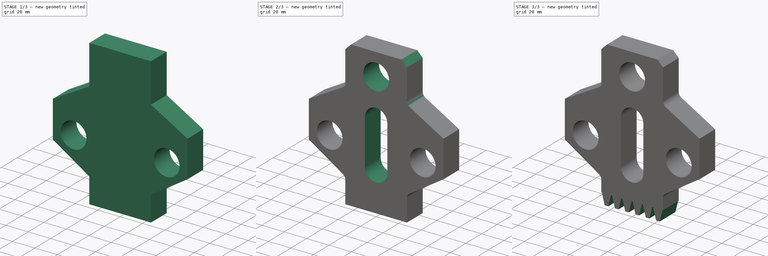
[diagram: build sequence overview — one tinted view per stage of 3, left to right]
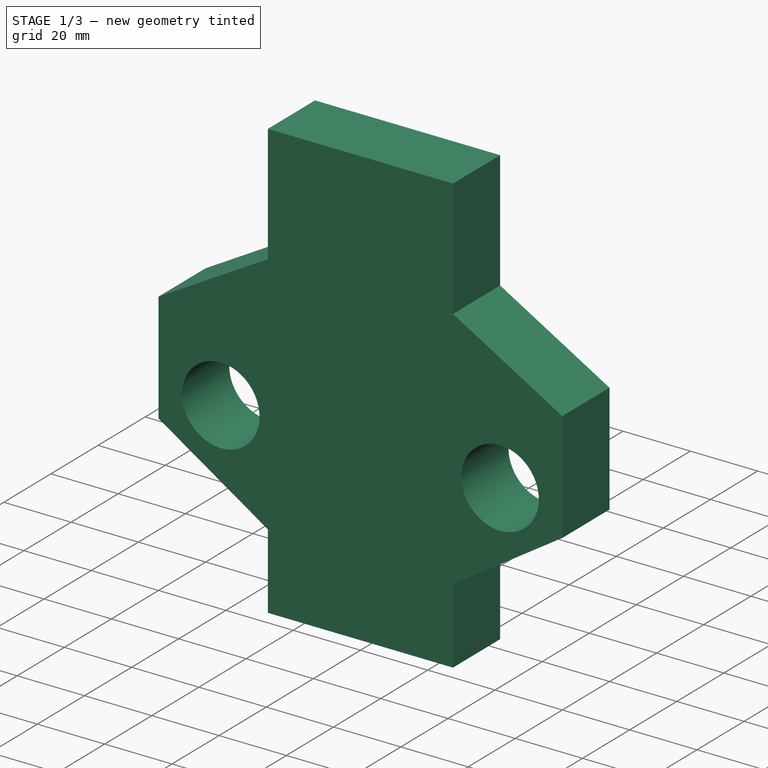
[diagram: stage 1 of 3 — iso view after this stage's code; geometry added in this stage tinted green]
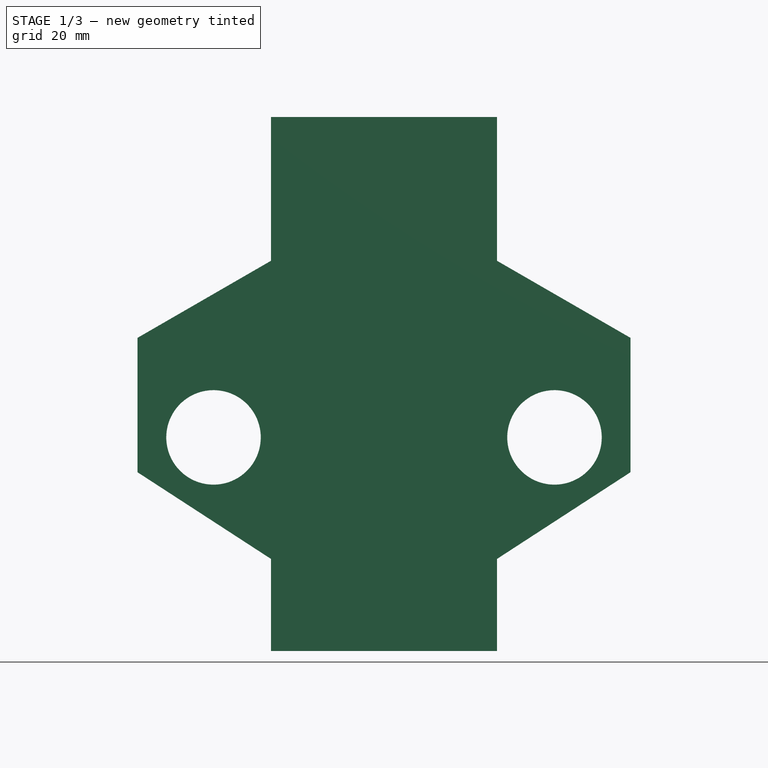
[diagram: stage 1 of 3 — front view after this stage's code; geometry added in this stage tinted green]
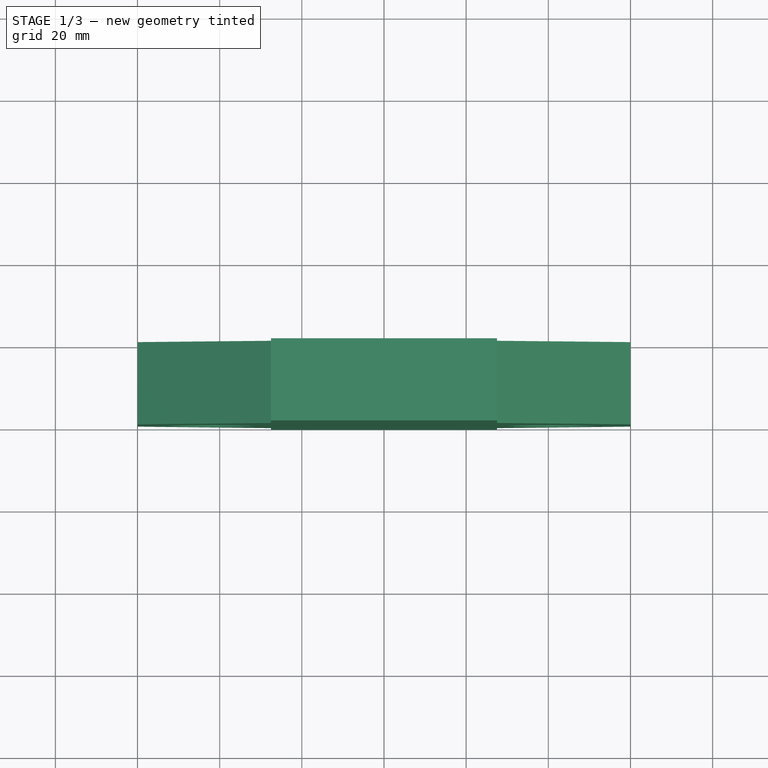
[diagram: stage 1 of 3 — top view after this stage's code; geometry added in this stage tinted green]
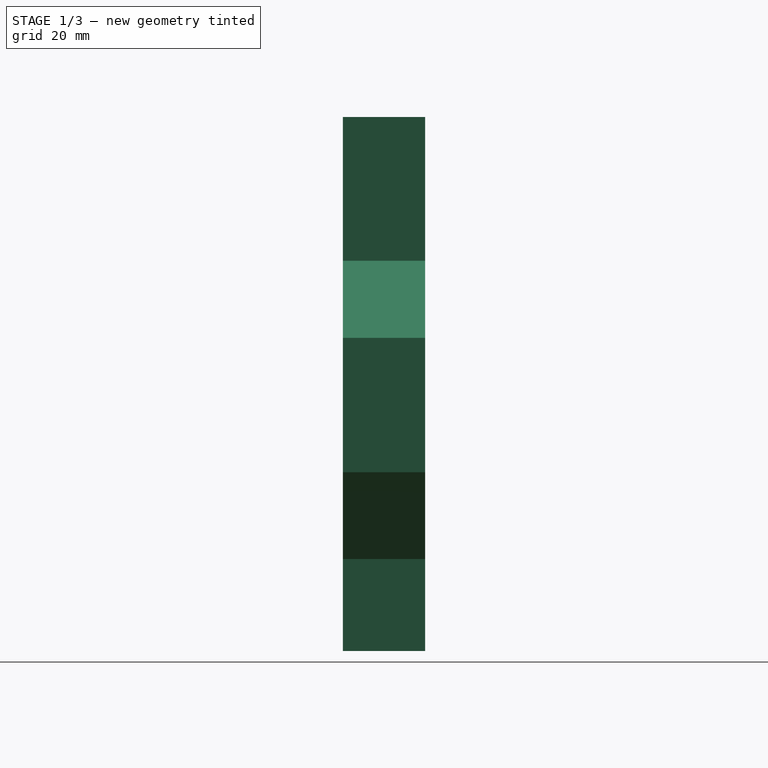
[diagram: stage 1 of 3 — right view after this stage's code; geometry added in this stage tinted green]
FCSTD DOCUMENT  (FreeCAD 0.17R9787 (Git))
Label: 2ndExample
License: All rights reserved
LicenseURL: http://en.wikipedia.org/wiki/All_rights_reserved
objects: Sketcher::SketchObject×4, PartDesign::Pocket×3, PartDesign::Pad×1, PartDesign::Plane×1, PartDesign::Fillet×1, PartDesign::Chamfer×1, PartDesign::LinearPattern×1, PartDesign::Body×1, App::Part×1
note: 17 computed .brp shape members not serialized (recipe doc carries the construction recipe); baked Part::Feature solids carry a one-line shape summary decoded from their .brp

FEATURE [Sketcher::SketchObject] Sketch
  MapMode = 5
  Placement = pos=(0,0,0) rot=(1,0,0;1.5708rad)
  Support = -> [XZ_Plane001]
  sketch-geometry (14):
    g0: LineSegment StartX=-27.5 StartY=70.1217 StartZ=0 EndX=27.5 EndY=70.1217 EndZ=0
    g1: LineSegment StartX=27.5 StartY=70.1217 StartZ=0 EndX=27.5 EndY=35.1217 EndZ=0
    g2: LineSegment StartX=27.5 StartY=35.1217 StartZ=0 EndX=60 EndY=16.3578 EndZ=0
    g3: LineSegment StartX=60 StartY=16.3578 StartZ=0 EndX=60 EndY=-16.3578 EndZ=0
    g4: LineSegment StartX=60 StartY=-16.3578 StartZ=0 EndX=27.5 EndY=-37.4635 EndZ=0
    g5: LineSegment StartX=27.5 StartY=-37.4635 StartZ=0 EndX=27.5 EndY=-59.8783 EndZ=0
    g6: LineSegment StartX=27.5 StartY=-59.8783 StartZ=0 EndX=-27.5 EndY=-59.8783 EndZ=0
    g7: LineSegment StartX=-27.5 StartY=-59.8783 StartZ=0 EndX=-27.5 EndY=-37.4635 EndZ=0
    g8: LineSegment StartX=-27.5 StartY=-37.4635 StartZ=0 EndX=-60 EndY=-16.3578 EndZ=0
    g9: LineSegment StartX=-60 StartY=-16.3578 StartZ=0 EndX=-60 EndY=16.3578 EndZ=0
    g10: LineSegment StartX=-60 StartY=16.3578 StartZ=0 EndX=-27.5 EndY=35.1217 EndZ=0
    g11: LineSegment StartX=-27.5 StartY=35.1217 StartZ=0 EndX=-27.5 EndY=70.1217 EndZ=0
    g12: Circle [constr] CenterX=41.5 CenterY=-7.87832 CenterZ=0 NormalX=0 NormalY=0 NormalZ=1 Radius=11.5
    g13: Circle [constr] CenterX=32.5 CenterY=-40.1783 CenterZ=0 NormalX=0 NormalY=0 NormalZ=1 Radius=5
  constraints (39):
    c: Horizontal(g0)
    c: Coincident(g0,g1)
    c: Coincident(g1,g2)
    c: Coincident(g2,g3)
    c: Vertical(g3)
    c: Coincident(g3,g4)
    c: Coincident(g4,g5)
    c: Vertical(g5)
    c: Coincident(g5,g6)
    c: Horizontal(g6)
    c: Coincident(g6,g7)
    c: Coincident(g7,g8)
    c: Coincident(g8,g9)
    c: Coincident(g9,g10)
    c: Coincident(g10,g11)
    c: Coincident(g11,g0)
    c: Symmetric(g0,g0,g-2)
    c: Symmetric(g1,g10,g-2)
    c: Symmetric(g2,g9,g-2)
    c: Symmetric(g3,g8,g-2)
    c: Symmetric(g4,g7,g-2)
    c: Symmetric(g5,g6,g-2)
    c: Distance(g0,g6) = 130
    c: Distance(g8,g3) = 120
    c: Distance(g0) = 55
    c: Angle(g10) = 0.523599
    c: Equal(g0,g6)
    c: Equal(g9,g3)
    c: Symmetric(g3,g2,g-1)
    c: Angle(g2,g4) = 1.09956
    c: Vertical(g1)
    c: Distance(g1) = 35
    c: Distance(g12,g6) = 52
    c: Distance(g12,g3) = 18.5
    c: Radius(g13) = 5
    c: Tangent(g13,g5)
    c: Tangent(g13,g4)
    c: Distance(g13,g6) = 19.7
    c: Radius(g12) = 11.5
FEATURE [PartDesign::Pad] Pad
  Length = 20
  Length2 = 100
  Placement = pos=(0,0,0) rot=(1,0,0;1.5708rad)
  Profile = -> Sketch
  Type = 0
FEATURE [PartDesign::Plane] DatumPlane
  MapMode = 5
  Placement = pos=(0,-20,0) rot=(1,0,0;1.5708rad)
  Support = -> [Pad]
FEATURE [Sketcher::SketchObject] Sketch001
  ExternalGeometry = -> [Pad]
  MapMode = 5
  Placement = pos=(0,-20,0) rot=(1,0,0;1.5708rad)
  Support = -> [DatumPlane]
  sketch-geometry (2):
    g0: Circle CenterX=41.5 CenterY=-7.87832 CenterZ=0 NormalX=0 NormalY=0 NormalZ=1 Radius=11.5
    g1: Circle CenterX=-41.5 CenterY=-7.87832 CenterZ=0 NormalX=0 NormalY=0 NormalZ=1 Radius=11.5
  constraints (5):
    c: Distance(g0,g-3) = 18.5
    c: Radius(g0) = 11.5
    c: Distance(g0,g-4) = 52
    c: Symmetric(g1,g0,g-2)
    c: Equal(g1,g0)
FEATURE [PartDesign::Pocket] Pocket
  BaseFeature = -> Pad
  Length = 5
  Placement = pos=(0,0,0) rot=(1,0,0;1.5708rad)
  Profile = -> Sketch001
  Type = 1
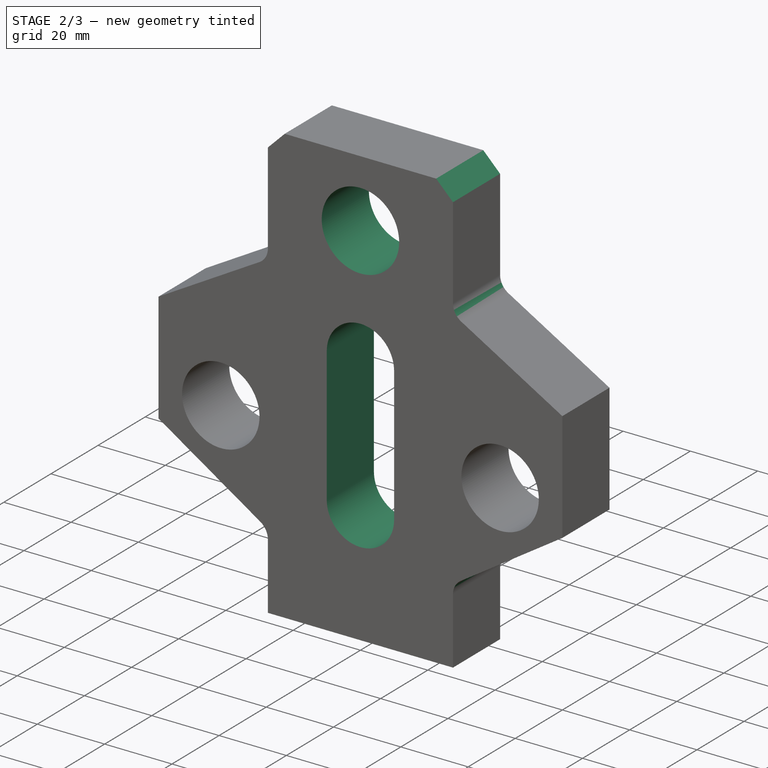
[diagram: stage 2 of 3 — iso view after this stage's code; geometry added in this stage tinted green]
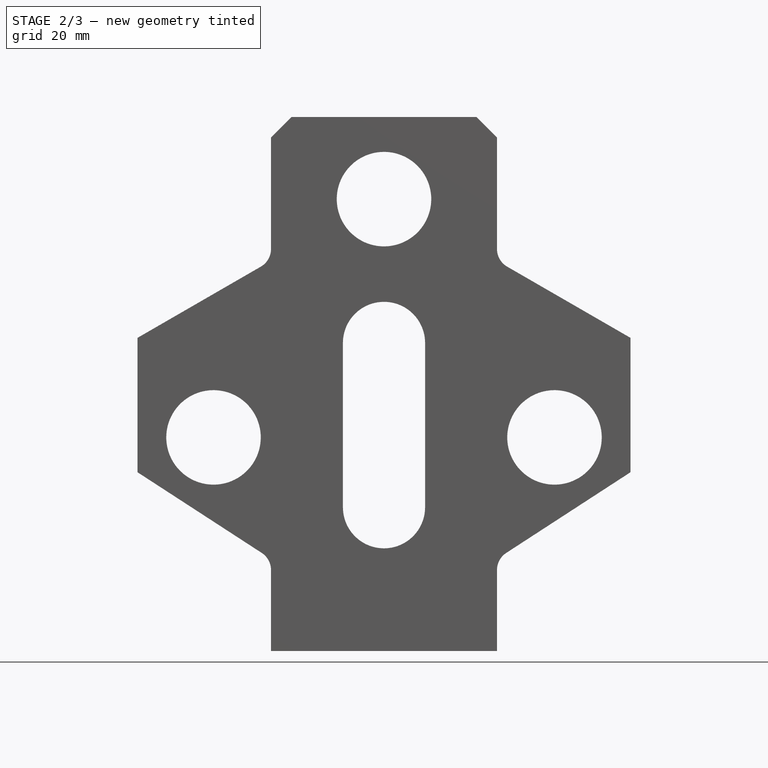
[diagram: stage 2 of 3 — front view after this stage's code; geometry added in this stage tinted green]
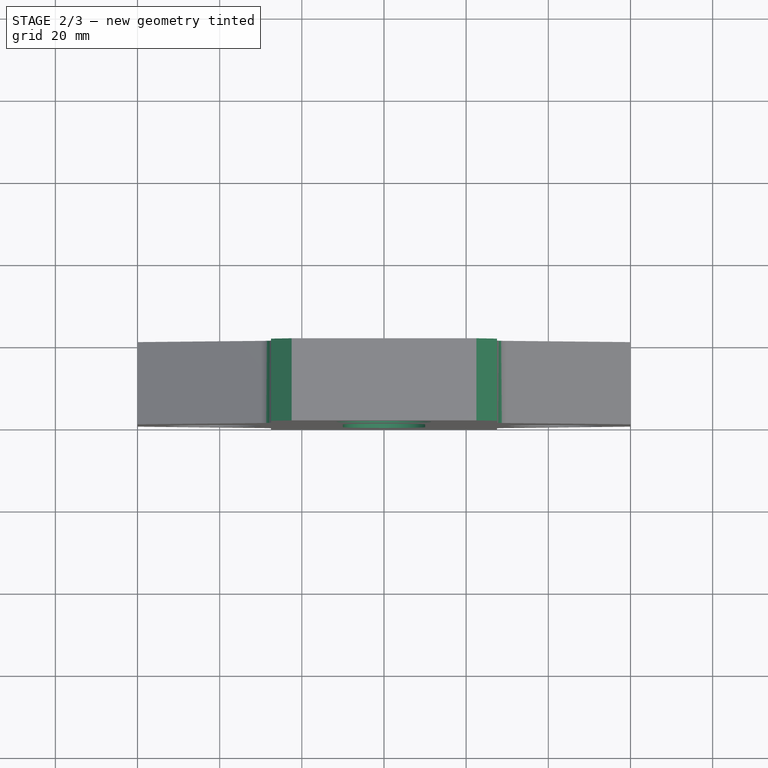
[diagram: stage 2 of 3 — top view after this stage's code; geometry added in this stage tinted green]
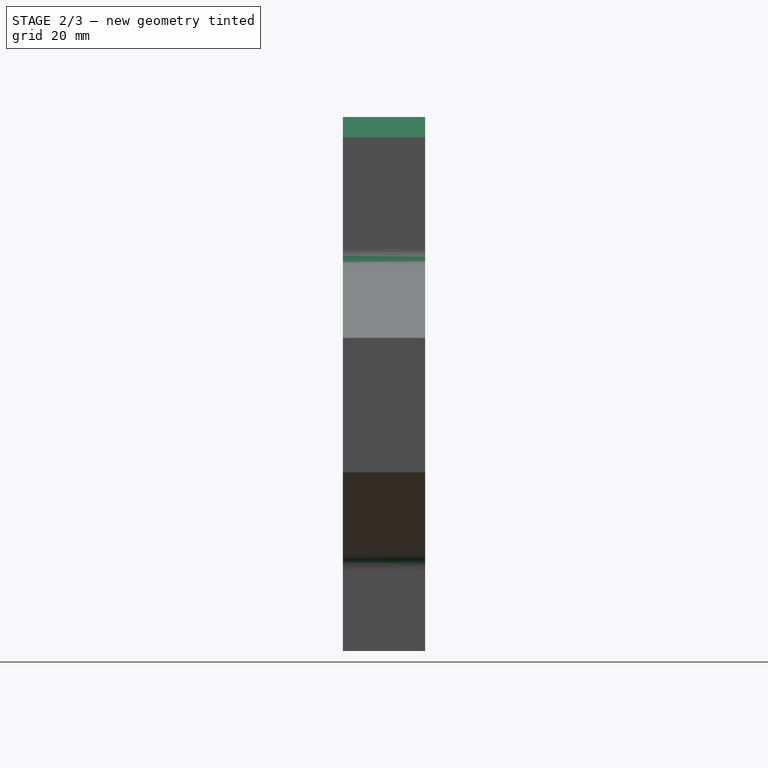
[diagram: stage 2 of 3 — right view after this stage's code; geometry added in this stage tinted green]
FEATURE [Sketcher::SketchObject] Sketch002
  ExternalGeometry = -> [Pocket]
  MapMode = 5
  Placement = pos=(0,-20,0) rot=(1,0,0;1.5708rad)
  Support = -> [DatumPlane]
  sketch-geometry (5):
    g0: Circle CenterX=0 CenterY=50.1217 CenterZ=0 NormalX=0 NormalY=0 NormalZ=1 Radius=11.5
    g1: ArcOfCircle CenterX=0 CenterY=15.1217 CenterZ=0 NormalX=0 NormalY=0 NormalZ=1 Radius=10 StartAngle=0 EndAngle=3.14159
    g2: ArcOfCircle CenterX=0 CenterY=-24.8783 CenterZ=0 NormalX=0 NormalY=0 NormalZ=1 Radius=10 StartAngle=3.14159 EndAngle=6.28319
    g3: LineSegment StartX=-10 StartY=15.1217 StartZ=0 EndX=-10 EndY=-24.8783 EndZ=0
    g4: LineSegment StartX=10 StartY=15.1217 StartZ=0 EndX=10 EndY=-24.8783 EndZ=0
  constraints (13):
    c: PointOnObject(g0,g-2)
    c: Radius(g0) = 11.5
    c: Distance(g0,g-3) = 20
    c: Tangent(g1,g4) = 1.5708
    c: Tangent(g1,g3) = -1.5708
    c: Tangent(g3,g2) = -1.5708
    c: Tangent(g4,g2) = 1.5708
    c: Vertical(g3)
    c: Equal(g1,g2)
    c: PointOnObject(g1,g-2)
    c: Distance(g2,g1) = 40
    c: Radius(g1) = 10
    c: Distance(g1,g-3) = 55
FEATURE [PartDesign::Pocket] Pocket001
  BaseFeature = -> Pocket
  Length = 5
  Placement = pos=(0,0,0) rot=(1,0,0;1.5708rad)
  Profile = -> Sketch002
  Type = 1
FEATURE [PartDesign::Fillet] Fillet
  Base = -> Pocket001 [Edge8,Edge48,Edge47,Edge5]
  BaseFeature = -> Pocket001
  Placement = pos=(0,0,0) rot=(1,0,0;1.5708rad)
  Radius = 5
FEATURE [PartDesign::Chamfer] Chamfer
  Base = -> Fillet [Edge3,Edge29]
  BaseFeature = -> Fillet
  Placement = pos=(0,0,0) rot=(1,0,0;1.5708rad)
  Size = 5
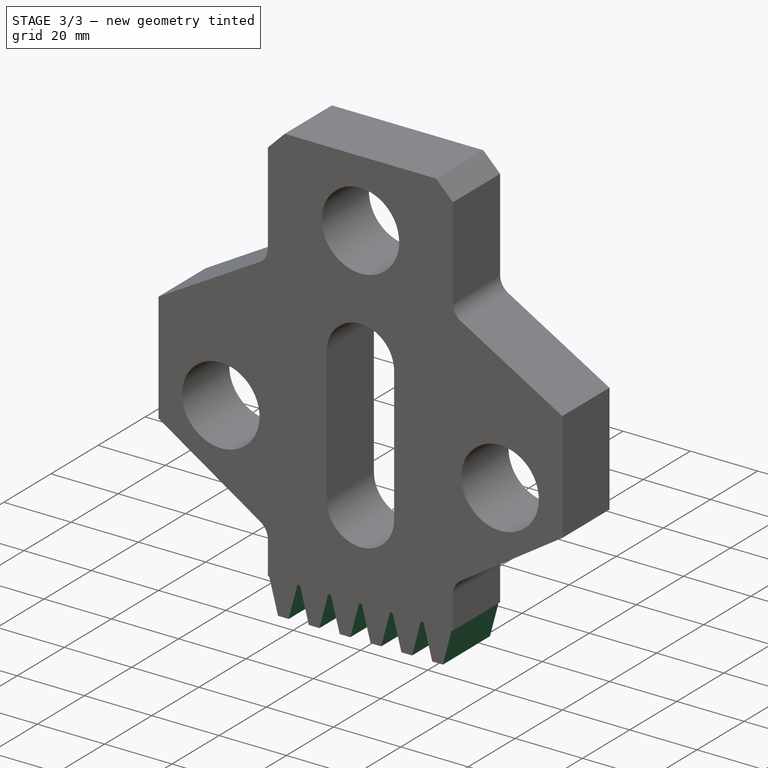
[diagram: stage 3 of 3 — iso view after this stage's code; geometry added in this stage tinted green]
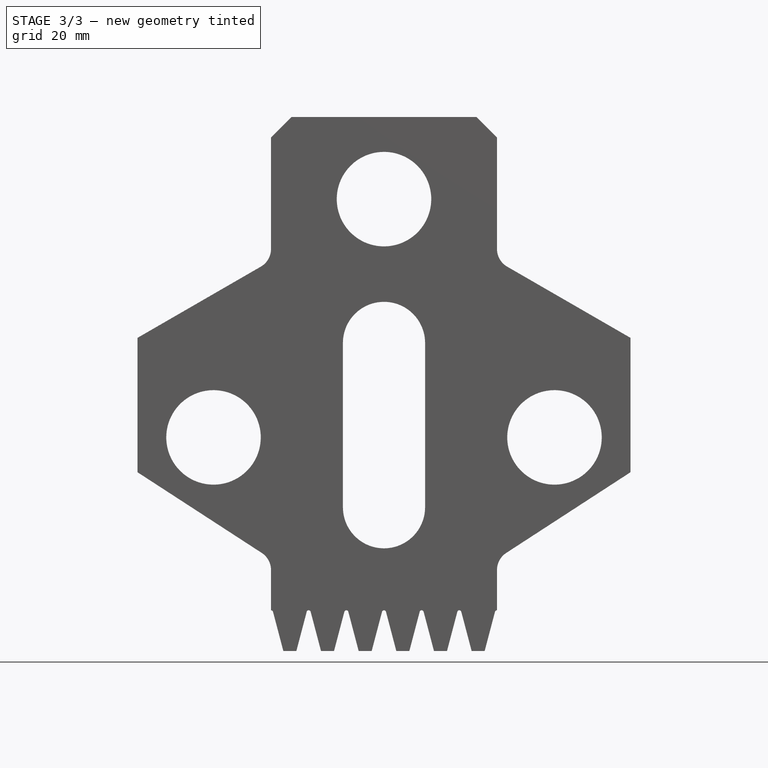
[diagram: stage 3 of 3 — front view after this stage's code; geometry added in this stage tinted green]
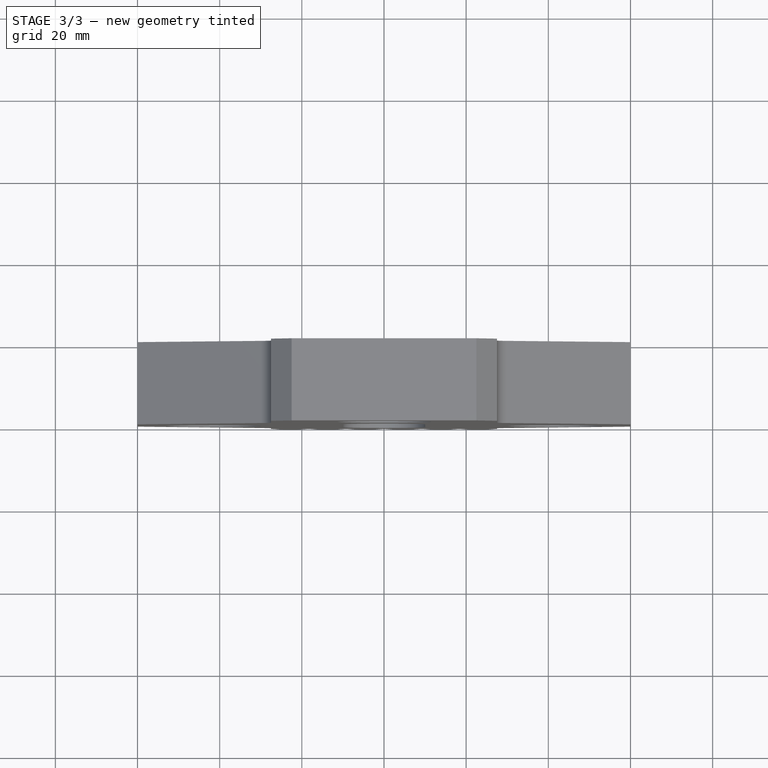
[diagram: stage 3 of 3 — top view after this stage's code; geometry added in this stage tinted green]
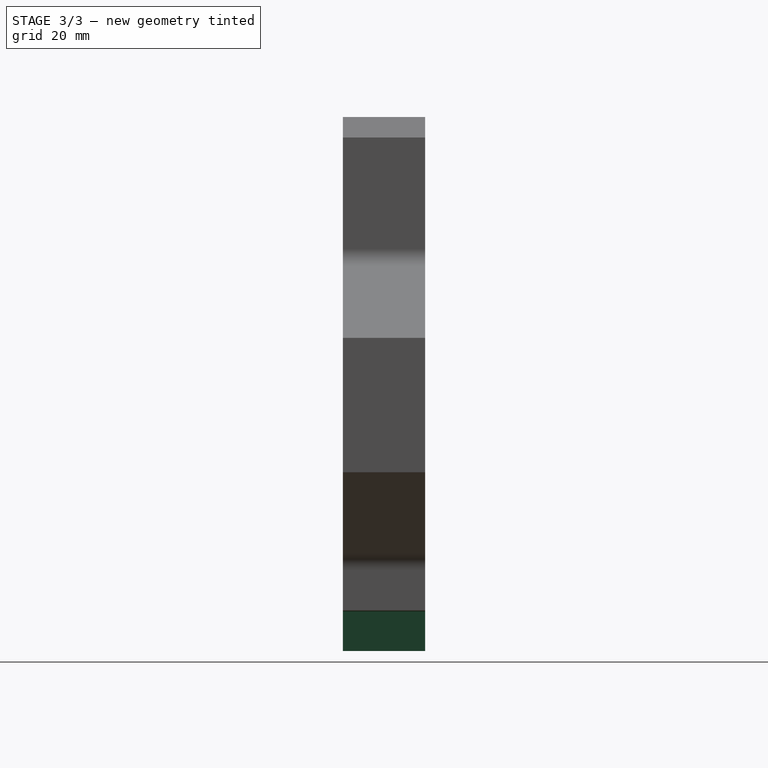
[diagram: stage 3 of 3 — right view after this stage's code; geometry added in this stage tinted green]
FEATURE [Sketcher::SketchObject] Sketch003
  ExternalGeometry = -> [Chamfer]
  MapMode = 5
  Placement = pos=(0,-20,0) rot=(1,0,0;1.5708rad)
  Support = -> [DatumPlane]
  sketch-geometry (5):
    g0: LineSegment StartX=30.5 StartY=-59.8783 StartZ=0 EndX=24.5 EndY=-59.8783 EndZ=0
    g1: LineSegment StartX=24.5 StartY=-59.8783 StartZ=0 EndX=27.0165 EndY=-50.3309 EndZ=0
    g2: LineSegment StartX=27.9835 StartY=-50.3309 StartZ=0 EndX=30.5 EndY=-59.8783 EndZ=0
    g3: LineSegment [constr] StartX=27.5 StartY=-50.4583 StartZ=0 EndX=27.5 EndY=-59.8783 EndZ=0
    g4: ArcOfCircle CenterX=27.5 CenterY=-50.4583 CenterZ=0 NormalX=0 NormalY=0 NormalZ=1 Radius=0.5 StartAngle=0.257718 EndAngle=2.88387
  constraints (14):
    c: Horizontal(g0)
    c: Coincident(g0,g1)
    c: Coincident(g2,g0)
    c: Vertical(g3)
    c: Symmetric(g0,g0,g3)
    c: PointOnObject(g3,g0)
    c: PointOnObject(g-3,g3)
    c: Distance(g3) = 9.42
    c: Distance(g0) = 6
    c: PointOnObject(g-3,g0)
    c: Tangent(g1,g4) = 1.5708
    c: Tangent(g2,g4) = 1.5708
    c: Coincident(g4,g3)
    c: Radius(g4) = 0.5
FEATURE [PartDesign::Pocket] Pocket002
  BaseFeature = -> Chamfer
  Length = 13
  Placement = pos=(0,0,0) rot=(1,0,0;1.5708rad)
  Profile = -> Sketch003
  Type = 1
FEATURE [PartDesign::LinearPattern] LinearPattern
  BaseFeature = -> Pocket002
  Direction = -> Sketch003 [H_Axis]
  Length = 55
  Occurrences = 7
  Originals = -> [Pocket002]
  Placement = pos=(0,0,0) rot=(1,0,0;1.5708rad)
  Reversed = true
FEATURE [PartDesign::Body] Body
  Group = -> [Sketch,Pad,DatumPlane,Sketch001,Pocket,Sketch002,Pocket001,Fillet,Chamfer,Sketch003,Pocket002,LinearPattern]
  Origin = -> BodyOrigin
  Tip = -> LinearPattern
FEATURE [App::Part] Part  label="2ndExample"
  Group = -> [Body]
  License = CC BY 3.0
  LicenseURL = http://creativecommons.org/licenses/by/3.0/
  Origin = -> PartOrigin
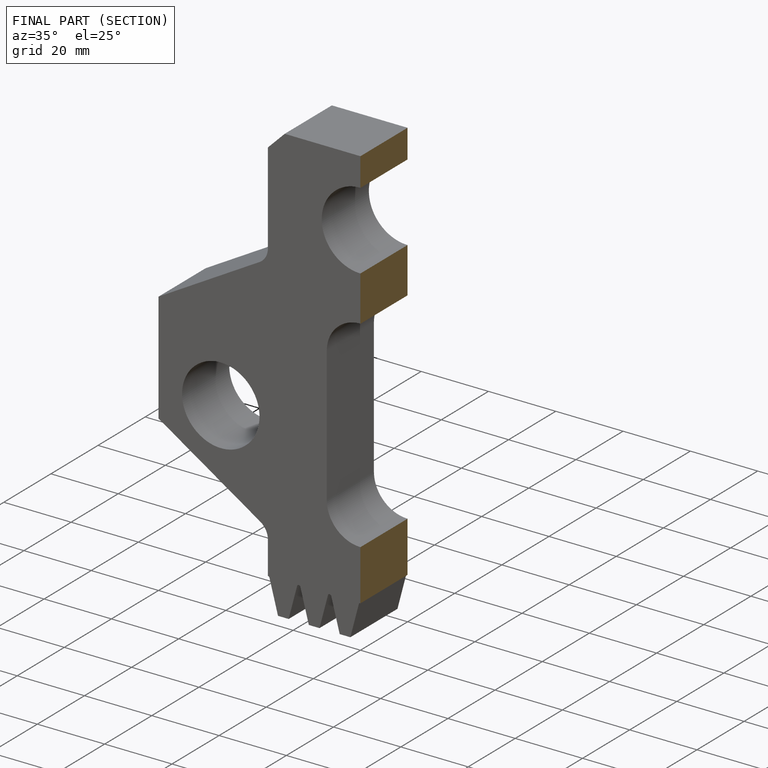
[diagram: finished part — half-section view (interior)]
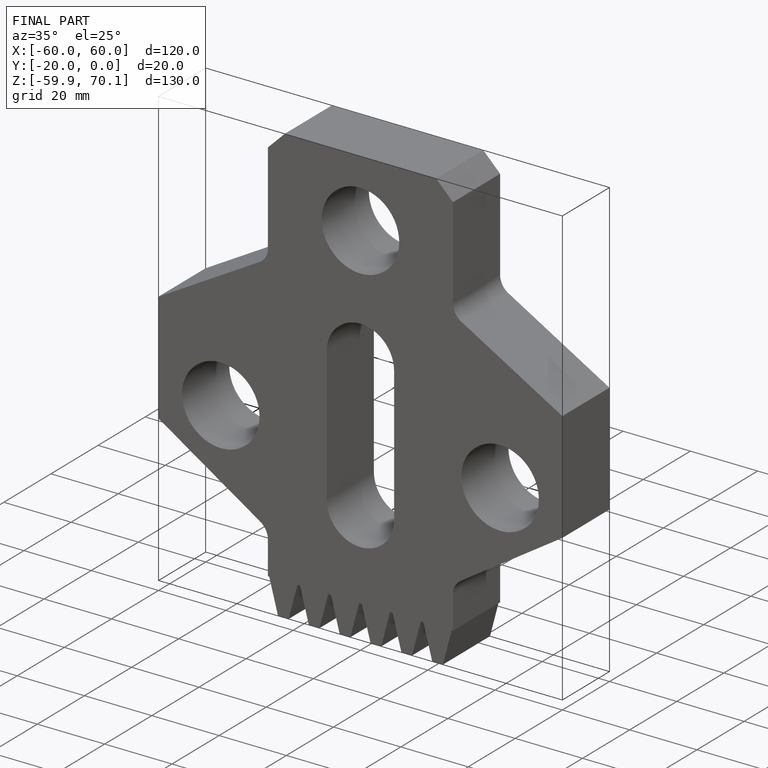
[diagram: finished part — iso view with bounding-box wireframe]
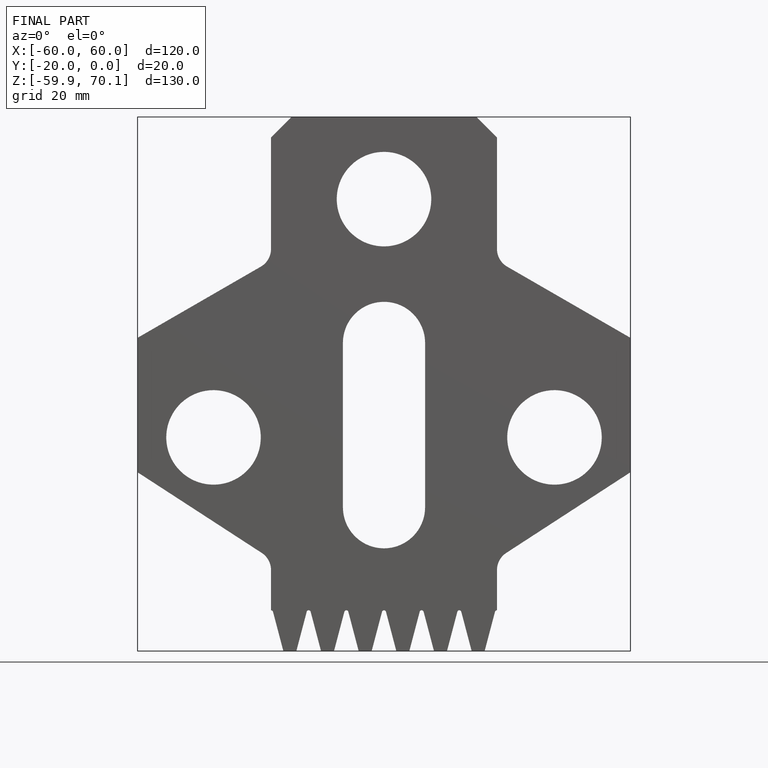
[diagram: finished part — front view with bounding-box wireframe]
